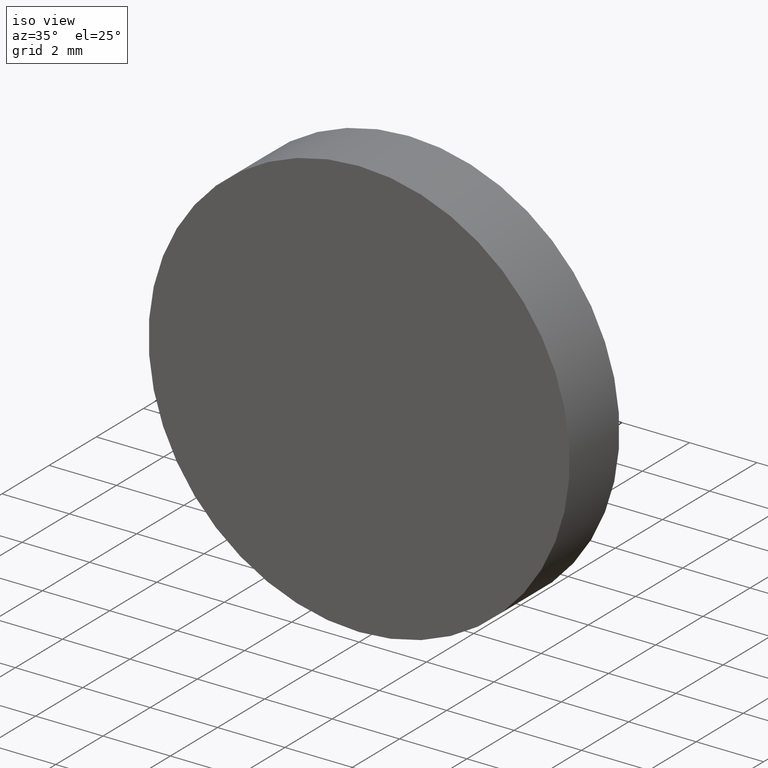
[diagram: clean part render]
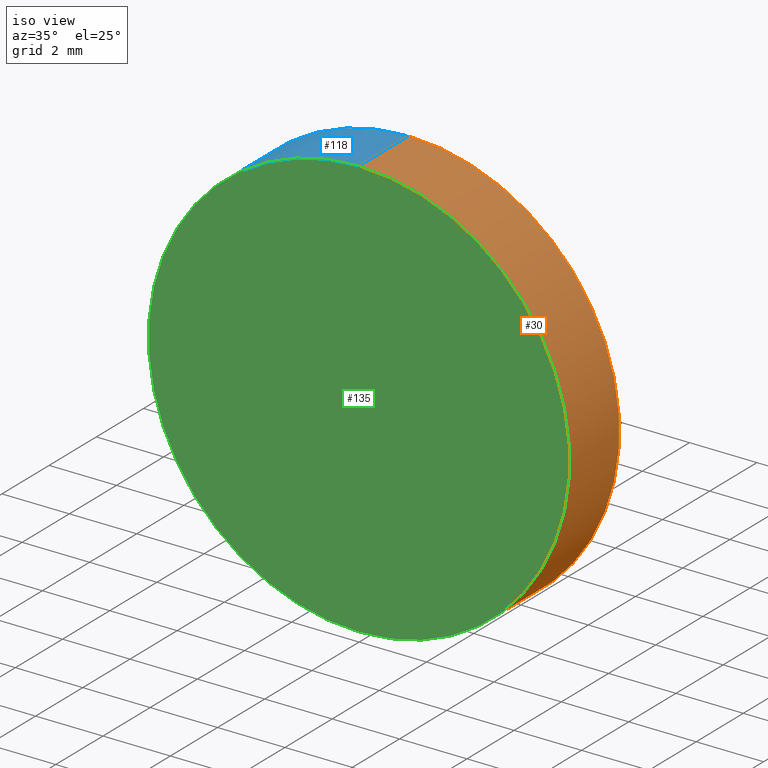
[diagram: same view with three faces highlighted in distinct colors, each labeled with its STEP entity id]
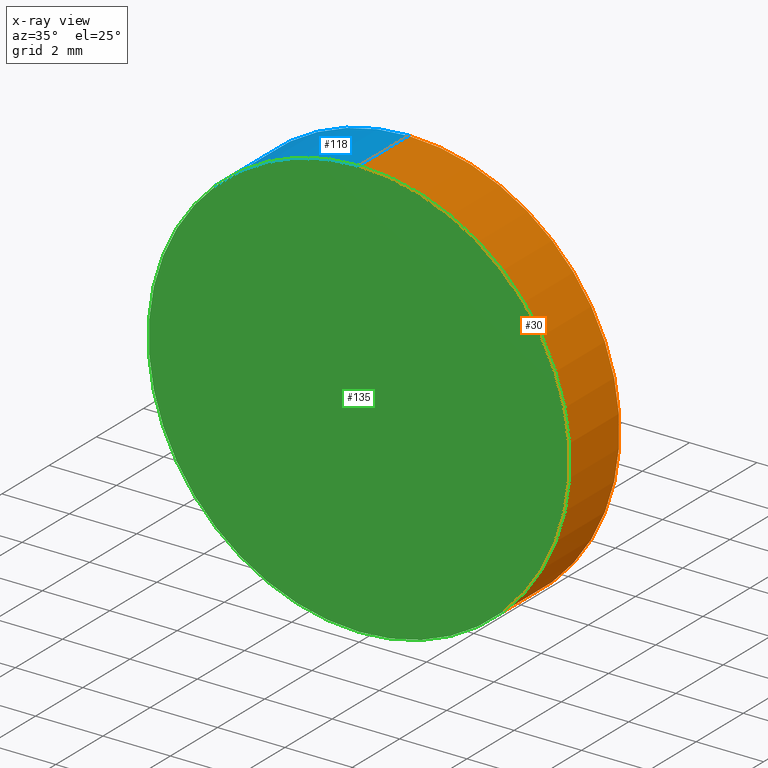
[diagram: x-ray of the same camera — body ghosted, the three highlighted faces saturated]
A machine part, iso view with three faces highlighted in distinct colors.
The next image is the same camera in x-ray (body ghosted, the three faces saturated) — at least one of them is partly hidden behind the body in this view.
Their STEP definitions:

[orange] entity #30 — the highlighted cylindrical surface (partial cylindrical patch) has radius 6.25 mm, axis along (-0, -1, -0).
#5 = EDGE_CURVE ( 'NONE', #65, #125, #123, .T. ) ;
#9 = DIRECTION ( 'NONE',  ( 0.0000000000000000000, 1.000000000000000000, 0.0000000000000000000 ) ) ;
#13 = VERTEX_POINT ( 'NONE', #49 ) ;
#18 = CIRCLE ( 'NONE', #41, 6.250000000000000000 ) ;
#20 = ORIENTED_EDGE ( 'NONE', *, *, #5, .T. ) ;
#26 = EDGE_CURVE ( 'NONE', #13, #106, #29, .T. ) ;
#27 = CARTESIAN_POINT ( 'NONE',  ( 0.0000000000000000000, 0.0000000000000000000, -6.250000000000000000 ) ) ;
#29 = LINE ( 'NONE', #78, #121 ) ;
#30 = ADVANCED_FACE ( 'NONE', ( #36 ), #83, .T. ) ;
#35 = DIRECTION ( 'NONE',  ( 0.0000000000000000000, 0.0000000000000000000, 1.000000000000000000 ) ) ;
#36 = FACE_OUTER_BOUND ( 'NONE', #134, .T. ) ;
#38 = AXIS2_PLACEMENT_3D ( 'NONE', #131, #56, #114 ) ;
#40 = ORIENTED_EDGE ( 'NONE', *, *, #58, .T. ) ;
#41 = AXIS2_PLACEMENT_3D ( 'NONE', #77, #9, #63 ) ;
#42 = VECTOR ( 'NONE', #127, 1000.000000000000000 ) ;
#46 = CARTESIAN_POINT ( 'NONE',  ( 0.0000000000000000000, 2.109999999999999900, 0.0000000000000000000 ) ) ;
#49 = CARTESIAN_POINT ( 'NONE',  ( 0.0000000000000000000, 2.109999999999999900, -6.250000000000000000 ) ) ;
#51 = ORIENTED_EDGE ( 'NONE', *, *, #81, .F. ) ;
#56 = DIRECTION ( 'NONE',  ( -0.0000000000000000000, -1.000000000000000000, -0.0000000000000000000 ) ) ;
#58 = EDGE_CURVE ( 'NONE', #125, #106, #18, .T. ) ;
#63 = DIRECTION ( 'NONE',  ( 0.0000000000000000000, 0.0000000000000000000, 1.000000000000000000 ) ) ;
#65 = VERTEX_POINT ( 'NONE', #102 ) ;
#71 = CIRCLE ( 'NONE', #85, 6.250000000000000000 ) ;
#72 = ORIENTED_EDGE ( 'NONE', *, *, #26, .F. ) ;
#77 = CARTESIAN_POINT ( 'NONE',  ( 0.0000000000000000000, 0.0000000000000000000, 0.0000000000000000000 ) ) ;
#78 = CARTESIAN_POINT ( 'NONE',  ( 0.0000000000000000000, 2.109999999999999900, -6.250000000000000000 ) ) ;
#81 = EDGE_CURVE ( 'NONE', #65, #13, #71, .T. ) ;
#83 = CYLINDRICAL_SURFACE ( 'NONE', #38, 6.250000000000000000 ) ;
#85 = AXIS2_PLACEMENT_3D ( 'NONE', #46, #111, #35 ) ;
#92 = DIRECTION ( 'NONE',  ( -0.0000000000000000000, -1.000000000000000000, -0.0000000000000000000 ) ) ;
#102 = CARTESIAN_POINT ( 'NONE',  ( 7.654042494670957600E-016, 2.109999999999999900, 6.250000000000000000 ) ) ;
#106 = VERTEX_POINT ( 'NONE', #27 ) ;
#111 = DIRECTION ( 'NONE',  ( 0.0000000000000000000, 1.000000000000000000, 0.0000000000000000000 ) ) ;
#114 = DIRECTION ( 'NONE',  ( 0.0000000000000000000, 0.0000000000000000000, -1.000000000000000000 ) ) ;
#121 = VECTOR ( 'NONE', #92, 1000.000000000000000 ) ;
#123 = LINE ( 'NONE', #130, #42 ) ;
#125 = VERTEX_POINT ( 'NONE', #138 ) ;
#127 = DIRECTION ( 'NONE',  ( -0.0000000000000000000, -1.000000000000000000, -0.0000000000000000000 ) ) ;
#130 = CARTESIAN_POINT ( 'NONE',  ( 7.654042494670957600E-016, 2.109999999999999900, 6.250000000000000000 ) ) ;
#131 = CARTESIAN_POINT ( 'NONE',  ( 0.0000000000000000000, 2.109999999999999900, 0.0000000000000000000 ) ) ;
#134 = EDGE_LOOP ( 'NONE', ( #51, #20, #40, #72 ) ) ;
#138 = CARTESIAN_POINT ( 'NONE',  ( 7.654042494670957600E-016, 0.0000000000000000000, 6.250000000000000000 ) ) ;

[blue] entity #118 — the highlighted cylindrical surface (partial cylindrical patch) has radius 6.25 mm, axis along (-0, -1, -0).
#5 = EDGE_CURVE ( 'NONE', #65, #125, #123, .T. ) ;
#7 = DIRECTION ( 'NONE',  ( 0.0000000000000000000, 0.0000000000000000000, 1.000000000000000000 ) ) ;
#13 = VERTEX_POINT ( 'NONE', #49 ) ;
#16 = CARTESIAN_POINT ( 'NONE',  ( 0.0000000000000000000, 0.0000000000000000000, 0.0000000000000000000 ) ) ;
#17 = EDGE_CURVE ( 'NONE', #13, #65, #31, .T. ) ;
#19 = DIRECTION ( 'NONE',  ( 0.0000000000000000000, 1.000000000000000000, 0.0000000000000000000 ) ) ;
#26 = EDGE_CURVE ( 'NONE', #13, #106, #29, .T. ) ;
#27 = CARTESIAN_POINT ( 'NONE',  ( 0.0000000000000000000, 0.0000000000000000000, -6.250000000000000000 ) ) ;
#29 = LINE ( 'NONE', #78, #121 ) ;
#31 = CIRCLE ( 'NONE', #61, 6.250000000000000000 ) ;
#39 = ORIENTED_EDGE ( 'NONE', *, *, #5, .F. ) ;
#42 = VECTOR ( 'NONE', #127, 1000.000000000000000 ) ;
#49 = CARTESIAN_POINT ( 'NONE',  ( 0.0000000000000000000, 2.109999999999999900, -6.250000000000000000 ) ) ;
#52 = AXIS2_PLACEMENT_3D ( 'NONE', #122, #89, #139 ) ;
#53 = DIRECTION ( 'NONE',  ( 0.0000000000000000000, 0.0000000000000000000, 1.000000000000000000 ) ) ;
#61 = AXIS2_PLACEMENT_3D ( 'NONE', #126, #19, #53 ) ;
#62 = CYLINDRICAL_SURFACE ( 'NONE', #52, 6.250000000000000000 ) ;
#65 = VERTEX_POINT ( 'NONE', #102 ) ;
#76 = DIRECTION ( 'NONE',  ( 0.0000000000000000000, 1.000000000000000000, 0.0000000000000000000 ) ) ;
#78 = CARTESIAN_POINT ( 'NONE',  ( 0.0000000000000000000, 2.109999999999999900, -6.250000000000000000 ) ) ;
#89 = DIRECTION ( 'NONE',  ( -0.0000000000000000000, -1.000000000000000000, -0.0000000000000000000 ) ) ;
#90 = FACE_OUTER_BOUND ( 'NONE', #132, .T. ) ;
#91 = EDGE_CURVE ( 'NONE', #106, #125, #109, .T. ) ;
#92 = DIRECTION ( 'NONE',  ( -0.0000000000000000000, -1.000000000000000000, -0.0000000000000000000 ) ) ;
#95 = ORIENTED_EDGE ( 'NONE', *, *, #17, .F. ) ;
#98 = ORIENTED_EDGE ( 'NONE', *, *, #91, .T. ) ;
#102 = CARTESIAN_POINT ( 'NONE',  ( 7.654042494670957600E-016, 2.109999999999999900, 6.250000000000000000 ) ) ;
#106 = VERTEX_POINT ( 'NONE', #27 ) ;
#108 = AXIS2_PLACEMENT_3D ( 'NONE', #16, #76, #7 ) ;
#109 = CIRCLE ( 'NONE', #108, 6.250000000000000000 ) ;
#118 = ADVANCED_FACE ( 'NONE', ( #90 ), #62, .T. ) ;
#121 = VECTOR ( 'NONE', #92, 1000.000000000000000 ) ;
#122 = CARTESIAN_POINT ( 'NONE',  ( 0.0000000000000000000, 2.109999999999999900, 0.0000000000000000000 ) ) ;
#123 = LINE ( 'NONE', #130, #42 ) ;
#125 = VERTEX_POINT ( 'NONE', #138 ) ;
#126 = CARTESIAN_POINT ( 'NONE',  ( 0.0000000000000000000, 2.109999999999999900, 0.0000000000000000000 ) ) ;
#127 = DIRECTION ( 'NONE',  ( -0.0000000000000000000, -1.000000000000000000, -0.0000000000000000000 ) ) ;
#130 = CARTESIAN_POINT ( 'NONE',  ( 7.654042494670957600E-016, 2.109999999999999900, 6.250000000000000000 ) ) ;
#132 = EDGE_LOOP ( 'NONE', ( #39, #95, #137, #98 ) ) ;
#137 = ORIENTED_EDGE ( 'NONE', *, *, #26, .T. ) ;
#138 = CARTESIAN_POINT ( 'NONE',  ( 7.654042494670957600E-016, 0.0000000000000000000, 6.250000000000000000 ) ) ;
#139 = DIRECTION ( 'NONE',  ( 0.0000000000000000000, 0.0000000000000000000, -1.000000000000000000 ) ) ;

[green] entity #135 — the highlighted planar face has unit normal (0, 1, 0).
#7 = DIRECTION ( 'NONE',  ( 0.0000000000000000000, 0.0000000000000000000, 1.000000000000000000 ) ) ;
#9 = DIRECTION ( 'NONE',  ( 0.0000000000000000000, 1.000000000000000000, 0.0000000000000000000 ) ) ;
#10 = DIRECTION ( 'NONE',  ( 0.0000000000000000000, 1.000000000000000000, 0.0000000000000000000 ) ) ;
#14 = ORIENTED_EDGE ( 'NONE', *, *, #91, .F. ) ;
#16 = CARTESIAN_POINT ( 'NONE',  ( 0.0000000000000000000, 0.0000000000000000000, 0.0000000000000000000 ) ) ;
#18 = CIRCLE ( 'NONE', #41, 6.250000000000000000 ) ;
#21 = FACE_OUTER_BOUND ( 'NONE', #24, .T. ) ;
#24 = EDGE_LOOP ( 'NONE', ( #14, #34 ) ) ;
#27 = CARTESIAN_POINT ( 'NONE',  ( 0.0000000000000000000, 0.0000000000000000000, -6.250000000000000000 ) ) ;
#34 = ORIENTED_EDGE ( 'NONE', *, *, #58, .F. ) ;
#41 = AXIS2_PLACEMENT_3D ( 'NONE', #77, #9, #63 ) ;
#44 = CARTESIAN_POINT ( 'NONE',  ( 0.0000000000000000000, 0.0000000000000000000, 0.0000000000000000000 ) ) ;
#58 = EDGE_CURVE ( 'NONE', #125, #106, #18, .T. ) ;
#63 = DIRECTION ( 'NONE',  ( 0.0000000000000000000, 0.0000000000000000000, 1.000000000000000000 ) ) ;
#76 = DIRECTION ( 'NONE',  ( 0.0000000000000000000, 1.000000000000000000, 0.0000000000000000000 ) ) ;
#77 = CARTESIAN_POINT ( 'NONE',  ( 0.0000000000000000000, 0.0000000000000000000, 0.0000000000000000000 ) ) ;
#84 = AXIS2_PLACEMENT_3D ( 'NONE', #44, #10, #140 ) ;
#91 = EDGE_CURVE ( 'NONE', #106, #125, #109, .T. ) ;
#103 = PLANE ( 'NONE',  #84 ) ;
#106 = VERTEX_POINT ( 'NONE', #27 ) ;
#108 = AXIS2_PLACEMENT_3D ( 'NONE', #16, #76, #7 ) ;
#109 = CIRCLE ( 'NONE', #108, 6.250000000000000000 ) ;
#125 = VERTEX_POINT ( 'NONE', #138 ) ;
#135 = ADVANCED_FACE ( 'NONE', ( #21 ), #103, .F. ) ;
#138 = CARTESIAN_POINT ( 'NONE',  ( 7.654042494670957600E-016, 0.0000000000000000000, 6.250000000000000000 ) ) ;
#140 = DIRECTION ( 'NONE',  ( 0.0000000000000000000, -0.0000000000000000000, 1.000000000000000000 ) ) ;